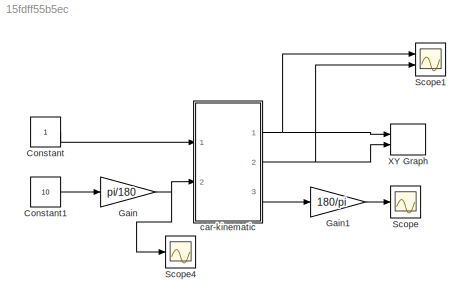
MODEL slx_15fdff55b5ec
KIND model
CONFIG AbsTol = auto
CONFIG EnableMultiTasking = off
CONFIG FixedStep = auto
CONFIG MaxStep = auto
CONFIG MinStep = auto
CONFIG RelTol = 1e-3
CONFIG SampleTimeConstraint = Unconstrained
CONFIG SolverName = FixedStepAuto
CONFIG StartTime = 0.0
CONFIG StopTime = 10
BLOCK [Constant] Constant
BLOCK [Constant] Constant1
  Value = 10
BLOCK [Gain] Gain
  Gain = pi/180
BLOCK [Gain] Gain1
  Gain = 180/pi
BLOCK [Scope] Scope
  Floating = off
  NumInputPorts = 1
  Ports = [1]
  ScopeSpecificationString = Simulink.scopes.TimeScopeBlockCfg('CurrentConfiguration', extmgr.ConfigurationSet(extmgr.Configuration('Core','General UI',true),extmgr.Configuration('Core','Source UI',true),extmgr.Configuration('Sources','WiredSimulink',true),extmgr.Configuration('Visuals','Time Domain',true,'SerializedDisplays',{struct('MinYLimReal','-49.71846','MaxYLimReal','447.46617','YLabelReal','','MinYLimMag','0.00000','M...<+1335ch>
BLOCK [Scope] Scope1
  Floating = off
  NumInputPorts = 2
  Ports = [2]
  ScopeSpecificationString = Simulink.scopes.TimeScopeBlockCfg('CurrentConfiguration', extmgr.ConfigurationSet(extmgr.Configuration('Core','General UI',true),extmgr.Configuration('Core','Source UI',true),extmgr.Configuration('Sources','WiredSimulink',true,'DataLoggingVariableName','ScopeData1'),extmgr.Configuration('Visuals','Time Domain',true,'SerializedDisplays',{struct('MinYLimReal','-1.80042','MaxYLimReal','1.79908','YLab...<+2078ch>
BLOCK [Scope] Scope4
  Floating = off
  NumInputPorts = 1
  Ports = [1]
  ScopeSpecificationString = Simulink.scopes.TimeScopeBlockCfg('CurrentConfiguration', extmgr.ConfigurationSet(extmgr.Configuration('Core','General UI',true),extmgr.Configuration('Core','Source UI',true),extmgr.Configuration('Sources','WiredSimulink',true,'DataLoggingVariableName','ScopeData4'),extmgr.Configuration('Visuals','Time Domain',true,'SerializedDisplays',{struct('MinYLimReal','0.07453','MaxYLimReal','0.27453','YLabe...<+1396ch>
BLOCK [Record] XY Graph
  CompatibilityTag = XY
  FileSettingsInternal = {"entries":[{"content":{"excelSettings":{"content":{},"type":"Streamout.ExcelSettings"}},"type":"Streamout.FileSettingStorage","uuid":"09be61e3-095a-4077-83e3-235673339609"}],"packageUris":["http://schema.mathworks.com/mf0/streamout_blocks/R2020a"],"version":"1.0"}
  Layout = [1 1]
  Ports = [2]
  SignalsInternal = {"entries":[{"content":{"signals":[{"content":{"blockPath":["test/XY Graph"],"channel":[],"dimensions":[1],"domain":"test/XY Graph","lineColor":"#a2142f","plots":[1],"port":1,"sid":[""],"signalID":20,"signalName":"car-kinematic:1"},"type":"RecordBlkView.Signal","uuid":"8ade2e4c-d0c5-4669-8e9e-364c20c690cf"},{"content":{"blockPath":["test/XY Graph"],"channel":[],"dimensions":[1],"domain":"test/XY G...<+359ch>
  VisualizationBindings = {"xyplotplugin":{"info":[{"series":[{"bindingParametersList":[{"parameter":"X-Axis","signalID":20,"signalName":"car-kinematic:1"},{"parameter":"Y-Axis","signalID":24,"signalName":"car-kinematic:2"}],"seriesID":16430}],"subplotID":1}]}}
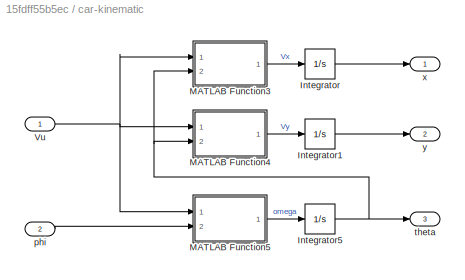
BLOCK [SubSystem] car-kinematic
  Ports = [2, 3]
  RequestExecContextInheritance = off
BLOCK [Integrator] car-kinematic/Integrator
  Ports = [1, 1]
BLOCK [Integrator] car-kinematic/Integrator1
  Ports = [1, 1]
BLOCK [Integrator] car-kinematic/Integrator5
  Ports = [1, 1]
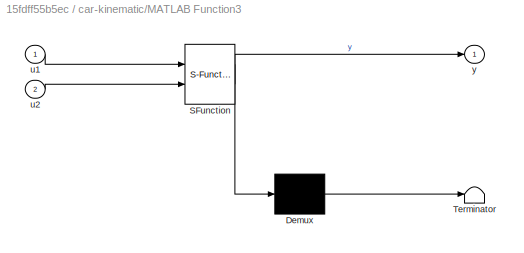
BLOCK [SubSystem] car-kinematic/MATLAB Function3
  ErrorFcn = Stateflow.Translate.translate
  PermitHierarchicalResolution = ExplicitOnly
  Ports = [2, 1]
  RequestExecContextInheritance = off
  SFBlockType = MATLAB Function
  TreatAsAtomicUnit = on
BLOCK [Demux] car-kinematic/MATLAB Function3/ Demux 
  Outputs = 1
  Ports = [1, 1]
BLOCK [S-Function] car-kinematic/MATLAB Function3/ SFunction 
  EnableBusSupport = on
  FunctionName = sf_sfun
  PortCounts = [2 2]
  Ports = [2, 2]
  SFcnIsStateOwnerBlock = off
  SFunctionDeploymentMode = off
  Tag = Stateflow S-Function 4
BLOCK [Terminator] car-kinematic/MATLAB Function3/ Terminator 
BLOCK [Inport] car-kinematic/MATLAB Function3/u1
BLOCK [Inport] car-kinematic/MATLAB Function3/u2
  Port = 2
BLOCK [Outport] car-kinematic/MATLAB Function3/y
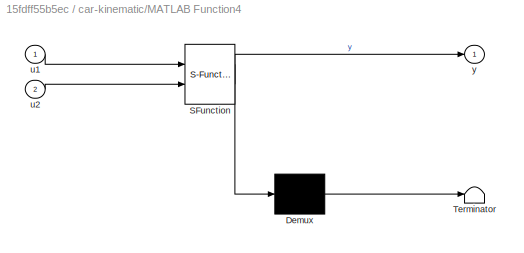
BLOCK [SubSystem] car-kinematic/MATLAB Function4
  ErrorFcn = Stateflow.Translate.translate
  PermitHierarchicalResolution = ExplicitOnly
  Ports = [2, 1]
  RequestExecContextInheritance = off
  SFBlockType = MATLAB Function
  TreatAsAtomicUnit = on
BLOCK [Demux] car-kinematic/MATLAB Function4/ Demux 
  Outputs = 1
  Ports = [1, 1]
BLOCK [S-Function] car-kinematic/MATLAB Function4/ SFunction 
  EnableBusSupport = on
  FunctionName = sf_sfun
  PortCounts = [2 2]
  Ports = [2, 2]
  SFcnIsStateOwnerBlock = off
  SFunctionDeploymentMode = off
  Tag = Stateflow S-Function 5
BLOCK [Terminator] car-kinematic/MATLAB Function4/ Terminator 
BLOCK [Inport] car-kinematic/MATLAB Function4/u1
BLOCK [Inport] car-kinematic/MATLAB Function4/u2
  Port = 2
BLOCK [Outport] car-kinematic/MATLAB Function4/y
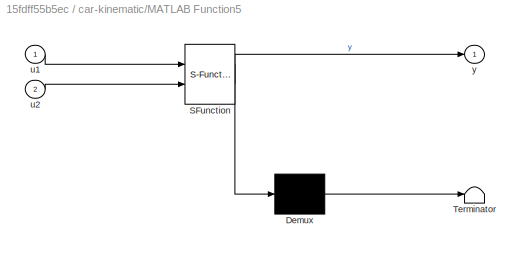
BLOCK [SubSystem] car-kinematic/MATLAB Function5
  ErrorFcn = Stateflow.Translate.translate
  PermitHierarchicalResolution = ExplicitOnly
  Ports = [2, 1]
  RequestExecContextInheritance = off
  SFBlockType = MATLAB Function
  TreatAsAtomicUnit = on
BLOCK [Demux] car-kinematic/MATLAB Function5/ Demux 
  Outputs = 1
  Ports = [1, 1]
BLOCK [S-Function] car-kinematic/MATLAB Function5/ SFunction 
  EnableBusSupport = on
  FunctionName = sf_sfun
  PortCounts = [2 2]
  Ports = [2, 2]
  SFcnIsStateOwnerBlock = off
  SFunctionDeploymentMode = off
  Tag = Stateflow S-Function 6
BLOCK [Terminator] car-kinematic/MATLAB Function5/ Terminator 
BLOCK [Inport] car-kinematic/MATLAB Function5/u1
BLOCK [Inport] car-kinematic/MATLAB Function5/u2
  Port = 2
BLOCK [Outport] car-kinematic/MATLAB Function5/y
BLOCK [Inport] car-kinematic/Vu
BLOCK [Inport] car-kinematic/phi
  Port = 2
BLOCK [Outport] car-kinematic/theta
  Port = 3
BLOCK [Outport] car-kinematic/x
BLOCK [Outport] car-kinematic/y
  Port = 2
LINE Constant1:1 -> Gain:1
LINE Constant:1 -> car-kinematic:1
LINE Gain1:1 -> Scope:1
NET Gain:1 -> Scope4:1, car-kinematic:2
LINE car-kinematic/Integrator1:1 -> car-kinematic/y:1
NET car-kinematic/Integrator5:1 -> car-kinematic/MATLAB Function3:2, car-kinematic/MATLAB Function4:2, car-kinematic/theta:1
LINE car-kinematic/Integrator:1 -> car-kinematic/x:1
LINE car-kinematic/MATLAB Function3:1 -> car-kinematic/Integrator:1
LINE car-kinematic/MATLAB Function4:1 -> car-kinematic/Integrator1:1
LINE car-kinematic/MATLAB Function5:1 -> car-kinematic/Integrator5:1
NET car-kinematic/Vu:1 -> car-kinematic/MATLAB Function3:1, car-kinematic/MATLAB Function4:1, car-kinematic/MATLAB Function5:1
LINE car-kinematic/phi:1 -> car-kinematic/MATLAB Function5:2
NET car-kinematic:1 -> Scope1:1, XY Graph:1
NET car-kinematic:2 -> Scope1:2, XY Graph:2
LINE car-kinematic:3 -> Gain1:1
note: NET lines group one-source signal fan-out (src -> all destinations, sorted); 1:1 wires keep LINE
CHART car-kinematic/MATLAB Function4 states=1 transitions=1
  STATE_LABEL 'eML_blk_kernel()'
  STATE_LABEL 'SCRIPT:\nfunction y = fcn(u1,u2)\ny=u1*sin(u2);\n'
CHART car-kinematic/MATLAB Function5 states=1 transitions=1
  STATE_LABEL 'eML_blk_kernel()'
  STATE_LABEL 'SCRIPT:\nfunction y = fcn(u1,u2)\nL=10*2.54/100;\ny=u1*tan(u2)/L;\n'
CHART car-kinematic/MATLAB Function3 states=1 transitions=1
  STATE_LABEL 'eML_blk_kernel()'
  STATE_LABEL 'SCRIPT:\nfunction y = fcn(u1,u2)\ny=u1*cos(u2);\n'
CHART  states=0 transitions=0
CHART  states=0 transitions=0
CHART  states=0 transitions=0
